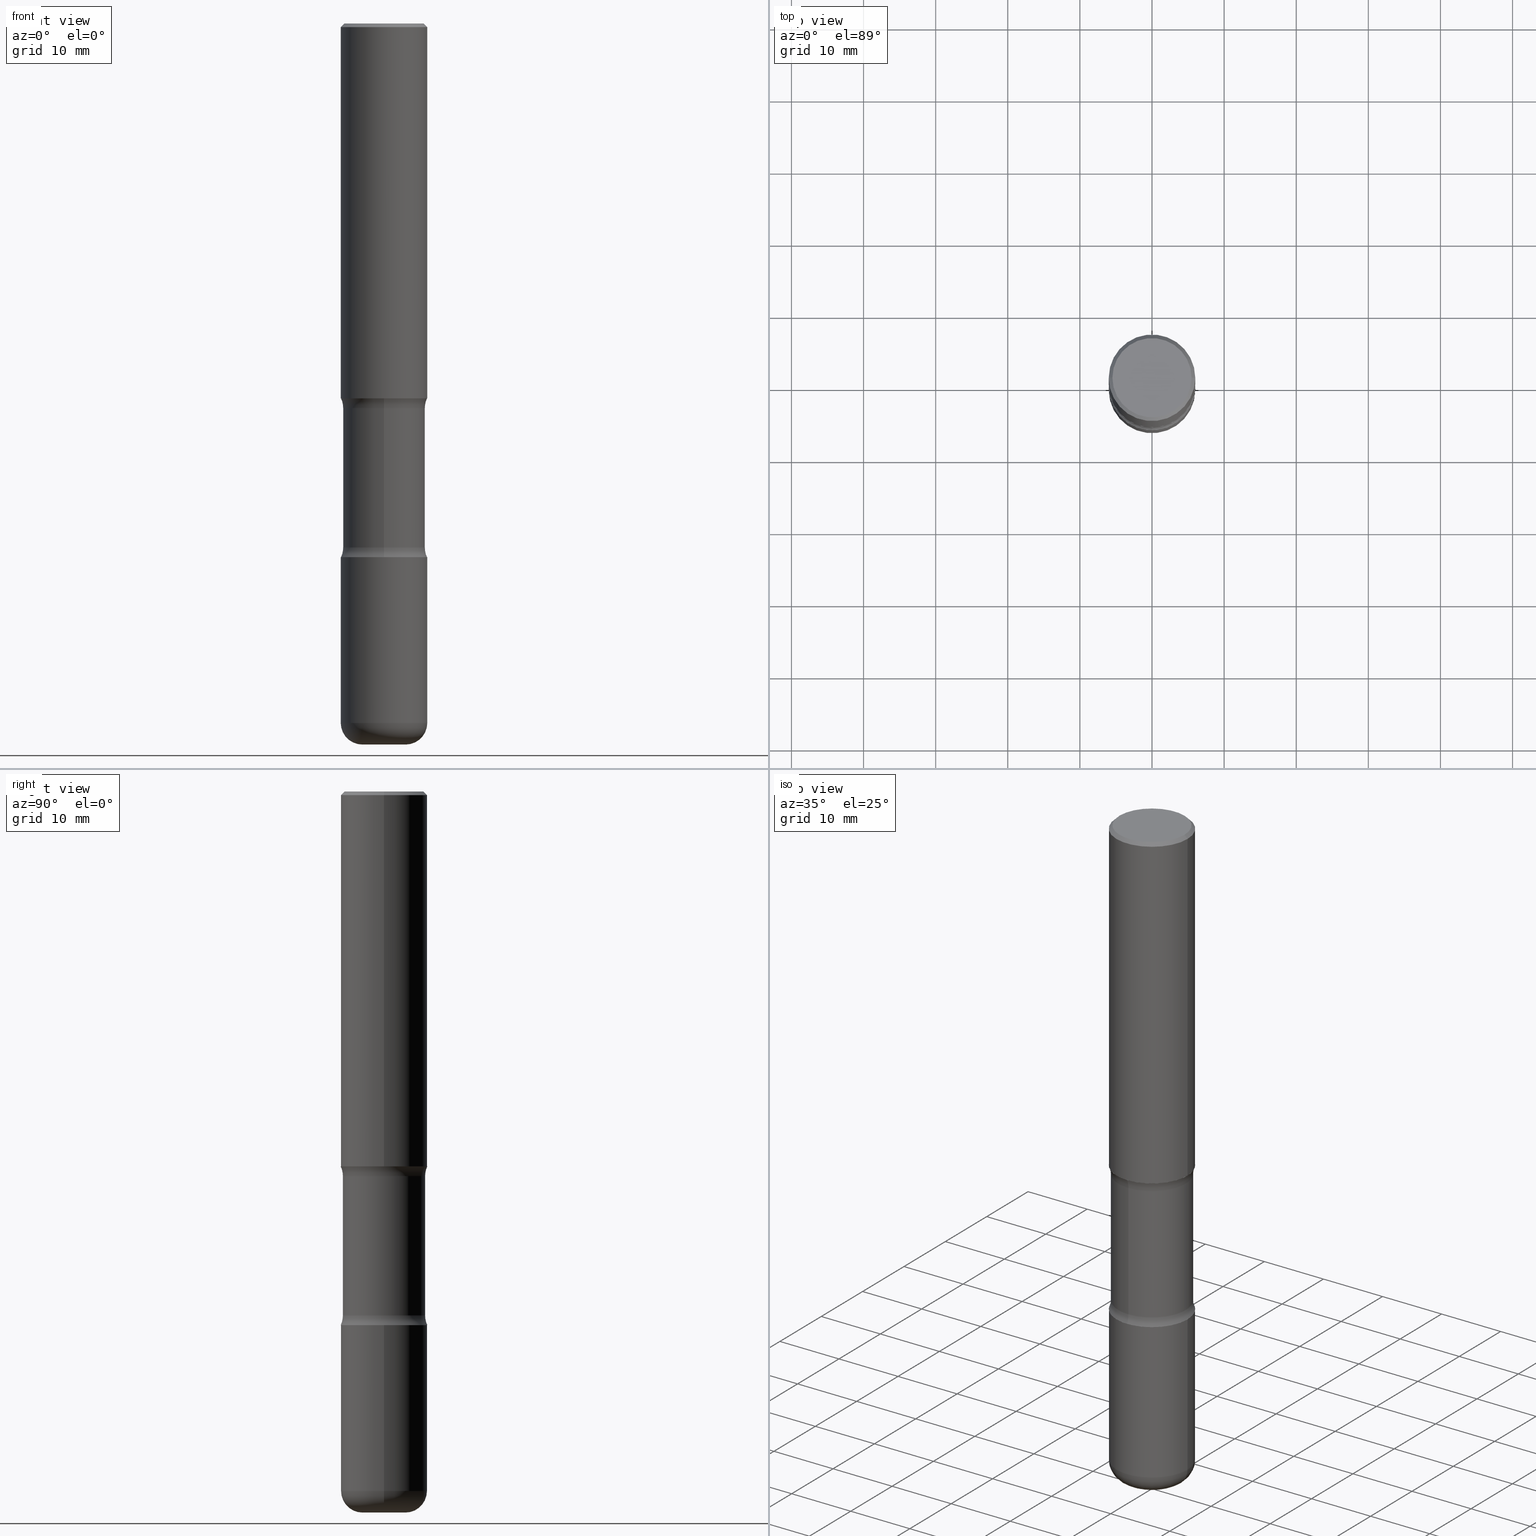
[diagram: canonical four-view strip — front | top / right | iso, engineering-drawing reading convention]
A machine part, canonical four-view strip (front | top / right | iso — engineering-drawing reading convention). The complete STEP part file that produces these views, byte-faithful:
ISO-10303-21;
HEADER;
FILE_DESCRIPTION (( 'STEP AP203' ),
    '1' );
FILE_NAME ('47712.STEP',
    '2024-03-02T07:41:34',
    ( '' ),
    ( '' ),
    'SwSTEP 2.0',
    'SolidWorks 2023',
    '' );
FILE_SCHEMA (( 'CONFIG_CONTROL_DESIGN' ));
ENDSEC;

DATA;
#1 = ADVANCED_FACE ( 'NONE', ( #97 ), #363, .T. ) ;
#2 = CIRCLE ( 'NONE', #140, 0.2161999999999998368 ) ;
#3 = AXIS2_PLACEMENT_3D ( 'NONE', #495, #107, #236 ) ;
#4 = ORIENTED_EDGE ( 'NONE', *, *, #439, .T. ) ;
#5 = LOCAL_TIME ( 2, 41, 34.00000000000000000, #168 ) ;
#6 = APPLICATION_CONTEXT ( 'configuration controlled 3d designs of mechanical parts and assemblies' ) ;
#7 = EDGE_LOOP ( 'NONE', ( #266, #401, #450, #311 ) ) ;
#8 = PERSON_AND_ORGANIZATION_ROLE ( 'creator' ) ;
#9 = EDGE_LOOP ( 'NONE', ( #138, #136, #232, #221 ) ) ;
#10 = ADVANCED_FACE ( 'NONE', ( #131 ), #387, .T. ) ;
#11 = DIRECTION ( 'NONE',  ( 1.000000000000000000, -6.982962677686269077E-15, 0.000000000000000000 ) ) ;
#12 = ORIENTED_EDGE ( 'NONE', *, *, #472, .F. ) ;
#13 = CIRCLE ( 'NONE', #544, 0.1181000000000002326 ) ;
#14 = CIRCLE ( 'NONE', #237, 0.1181000000000002326 ) ;
#15 = AXIS2_PLACEMENT_3D ( 'NONE', #325, #457, #234 ) ;
#16 = CARTESIAN_POINT ( 'NONE',  ( 6.990709676060807691E-29, -9.993088279580958225E-15, -2.860383398826405354 ) ) ;
#17 = FACE_OUTER_BOUND ( 'NONE', #541, .T. ) ;
#18 = EDGE_CURVE ( 'NONE', #63, #54, #206, .T. ) ;
#19 = PERSON_AND_ORGANIZATION_ROLE ( 'design_supplier' ) ;
#20 = DIRECTION ( 'NONE',  ( 7.105427357601001859E-15, 1.000000000000000000, -3.491481338843145583E-15 ) ) ;
#21 = ORIENTED_EDGE ( 'NONE', *, *, #491, .T. ) ;
#22 = DIRECTION ( 'NONE',  ( 2.525985086076564115E-29, -3.376177443336566513E-15, -1.000000000000000000 ) ) ;
#23 = DIRECTION ( 'NONE',  ( -2.445468806185136597E-29, 3.491481338843145583E-15, 1.000000000000000000 ) ) ;
#24 = ORIENTED_EDGE ( 'NONE', *, *, #153, .T. ) ;
#25 = CARTESIAN_POINT ( 'NONE',  ( 0.000000000000000000, 0.000000000000000000, 0.000000000000000000 ) ) ;
#26 = AXIS2_PLACEMENT_3D ( 'NONE', #233, #150, #459 ) ;
#27 = DIRECTION ( 'NONE',  ( 6.982962677686265922E-15, 1.000000000000000000, -3.652203200085913934E-15 ) ) ;
#28 = LINE ( 'NONE', #38, #393 ) ;
#29 = EDGE_CURVE ( 'NONE', #58, #524, #13, .T. ) ;
#30 = CC_DESIGN_PERSON_AND_ORGANIZATION_ASSIGNMENT ( #553, #41, ( #240 ) ) ;
#31 = VECTOR ( 'NONE', #220, 39.37007874015748143 ) ;
#32 = DIRECTION ( 'NONE',  ( -2.445468806185136597E-29, 3.491481338843145583E-15, 1.000000000000000000 ) ) ;
#33 = EDGE_CURVE ( 'NONE', #270, #210, #330, .T. ) ;
#34 = CIRCLE ( 'NONE', #148, 0.2361999999999998823 ) ;
#35 = CARTESIAN_POINT ( 'NONE',  ( -1.043851414335219820E-46, 1.490343170380447200E-32, 4.268512490100411279E-18 ) ) ;
#36 = LINE ( 'NONE', #154, #556 ) ;
#37 = EDGE_CURVE ( 'NONE', #45, #281, #348, .T. ) ;
#38 = CARTESIAN_POINT ( 'NONE',  ( -1.539495750699834052E-15, -0.2244000000000135608, -3.936999999999999389 ) ) ;
#39 = CARTESIAN_POINT ( 'NONE',  ( 9.627810689950880306E-29, -1.374596203102546026E-14, -3.936999999999998945 ) ) ;
#40 = CARTESIAN_POINT ( 'NONE',  ( 1.509716530915769534E-15, 0.2161999999999998368, -7.527240092128373149E-16 ) ) ;
#41 = PERSON_AND_ORGANIZATION_ROLE ( 'design_owner' ) ;
#42 = CIRCLE ( 'NONE', #431, 0.1249999999999999029 ) ;
#43 = APPROVAL_STATUS ( 'not_yet_approved' ) ;
#44 = DIRECTION ( 'NONE',  ( -2.438088387897960049E-29, 3.491481338843145188E-15, 1.000000000000000000 ) ) ;
#45 = VERTEX_POINT ( 'NONE', #478 ) ;
#46 = CIRCLE ( 'NONE', #172, 0.2362000000000002153 ) ;
#47 = DATE_AND_TIME ( #479, #467 ) ;
#48 = CC_DESIGN_APPROVAL ( #195, ( #539 ) ) ;
#49 = CARTESIAN_POINT ( 'NONE',  ( 9.710227154047748282E-29, -1.362793696358492956E-14, -3.937000000000000277 ) ) ;
#50 = ORIENTED_EDGE ( 'NONE', *, *, #73, .T. ) ;
#51 = ADVANCED_FACE ( 'NONE', ( #344 ), #90, .F. ) ;
#52 = CALENDAR_DATE ( 2024, 2, 3 ) ;
#53 = CARTESIAN_POINT ( 'NONE',  ( 9.339000823940415305E-29, -1.333361808490808613E-14, -3.818899999999998851 ) ) ;
#54 = VERTEX_POINT ( 'NONE', #249 ) ;
#55 = DIRECTION ( 'NONE',  ( -6.982962677686266711E-15, -1.000000000000000000, 0.000000000000000000 ) ) ;
#56 = ORIENTED_EDGE ( 'NONE', *, *, #203, .F. ) ;
#57 = CARTESIAN_POINT ( 'NONE',  ( 5.006363740022212241E-29, -7.147760596879688202E-15, -2.047200000000000131 ) ) ;
#58 = VERTEX_POINT ( 'NONE', #381 ) ;
#59 = CARTESIAN_POINT ( 'NONE',  ( 1.566976824872867821E-15, 0.2243999999999899686, -2.860383398826405799 ) ) ;
#60 = AXIS2_PLACEMENT_3D ( 'NONE', #402, #269, #368 ) ;
#61 = TOROIDAL_SURFACE ( 'NONE', #376, 0.3493999999999998218, 0.1249999999999999029 ) ;
#62 = DIRECTION ( 'NONE',  ( 2.525985086076564115E-29, -3.376177443336566513E-15, -1.000000000000000000 ) ) ;
#63 = VERTEX_POINT ( 'NONE', #367 ) ;
#64 = ADVANCED_FACE ( 'NONE', ( #142 ), #532, .F. ) ;
#65 = DIRECTION ( 'NONE',  ( 2.525985086076564115E-29, -3.376177443336566513E-15, -1.000000000000000000 ) ) ;
#66 = EDGE_LOOP ( 'NONE', ( #362, #400, #515, #448 ) ) ;
#67 = CARTESIAN_POINT ( 'NONE',  ( 9.710227154047748282E-29, -1.362793696358492956E-14, -3.937000000000000277 ) ) ;
#68 = DIRECTION ( 'NONE',  ( 6.982962677686265922E-15, 1.000000000000000000, -3.376177443336566513E-15 ) ) ;
#69 = AXIS2_PLACEMENT_3D ( 'NONE', #57, #483, #11 ) ;
#70 = CIRCLE ( 'NONE', #124, 0.2362000000000002153 ) ;
#71 = ADVANCED_FACE ( 'NONE', ( #318 ), #295, .T. ) ;
#72 = ORIENTED_EDGE ( 'NONE', *, *, #173, .T. ) ;
#73 = EDGE_CURVE ( 'NONE', #530, #537, #518, .T. ) ;
#74 = DIRECTION ( 'NONE',  ( 1.000000000000000000, -6.982962677686267499E-15, 0.000000000000000000 ) ) ;
#75 = AXIS2_PLACEMENT_3D ( 'NONE', #109, #106, #263 ) ;
#76 = LOCAL_TIME ( 2, 41, 34.00000000000000000, #91 ) ;
#77 = PLANE ( 'NONE',  #226 ) ;
#78 = CARTESIAN_POINT ( 'NONE',  ( 0.000000000000000000, 0.000000000000000000, 0.000000000000000000 ) ) ;
#79 = UNCERTAINTY_MEASURE_WITH_UNIT (LENGTH_MEASURE( 1.000000000000000082E-05 ), #170, 'distance_accuracy_value', 'NONE');
#80 = DIRECTION ( 'NONE',  ( 1.000000000000000000, -6.982962677686265922E-15, 4.876176775795935793E-29 ) ) ;
#81 = CARTESIAN_POINT ( 'NONE',  ( 9.339000823940415305E-29, -1.333361808490808613E-14, -3.818899999999998851 ) ) ;
#82 = DATE_AND_TIME ( #514, #5 ) ;
#83 = DIRECTION ( 'NONE',  ( -2.445468806185136597E-29, 3.491481338843145583E-15, 1.000000000000000000 ) ) ;
#84 = AXIS2_PLACEMENT_3D ( 'NONE', #301, #123, #440 ) ;
#85 = AXIS2_PLACEMENT_3D ( 'NONE', #189, #283, #501 ) ;
#86 = ORIENTED_EDGE ( 'NONE', *, *, #37, .F. ) ;
#87 = CARTESIAN_POINT ( 'NONE',  ( 4.890937612370289799E-31, -6.982962677686315028E-17, -0.02000000000000006981 ) ) ;
#88 = CC_DESIGN_PERSON_AND_ORGANIZATION_ASSIGNMENT ( #133, #103, ( #287 ) ) ;
#89 = DIRECTION ( 'NONE',  ( 1.000000000000000000, -6.982962677686269077E-15, 0.000000000000000000 ) ) ;
#90 = PLANE ( 'NONE',  #304 ) ;
#91 = COORDINATED_UNIVERSAL_TIME_OFFSET ( 5, 0, .BEHIND. ) ;
#92 = MANIFOLD_SOLID_BREP ( 'Body-Move/Copy2[1]', #99 ) ;
#93 = EDGE_CURVE ( 'NONE', #45, #497, #46, .T. ) ;
#94 = DATE_AND_TIME ( #360, #365 ) ;
#95 = EDGE_LOOP ( 'NONE', ( #110, #412, #369, #262 ) ) ;
#96 = EDGE_LOOP ( 'NONE', ( #177, #50, #24, #155 ) ) ;
#97 = FACE_OUTER_BOUND ( 'NONE', #274, .T. ) ;
#98 = EDGE_CURVE ( 'NONE', #386, #537, #275, .T. ) ;
#99 = CLOSED_SHELL ( 'NONE', ( #418, #333, #129, #1, #302, #64 ) ) ;
#100 = AXIS2_PLACEMENT_3D ( 'NONE', #513, #542, #549 ) ;
#101 = DIRECTION ( 'NONE',  ( 2.525985086076564115E-29, -3.376177443336566513E-15, -1.000000000000000000 ) ) ;
#102 = EDGE_LOOP ( 'NONE', ( #543, #327, #114, #225 ) ) ;
#103 = PERSON_AND_ORGANIZATION_ROLE ( 'classification_officer' ) ;
#104 = EDGE_LOOP ( 'NONE', ( #228, #409 ) ) ;
#105 = CARTESIAN_POINT ( 'NONE',  ( 1.566976824872894642E-15, 0.2243999999999863049, -3.937000000000000721 ) ) ;
#106 = DIRECTION ( 'NONE',  ( 2.525985086076564115E-29, -3.376177443336566513E-15, -1.000000000000000000 ) ) ;
#107 = DIRECTION ( 'NONE',  ( -2.445468806185136597E-29, 3.491481338843145583E-15, 1.000000000000000000 ) ) ;
#108 = CIRCLE ( 'NONE', #384, 0.2243999999999999606 ) ;
#109 = CARTESIAN_POINT ( 'NONE',  ( 6.990709676060807691E-29, -9.993088279580958225E-15, -2.860383398826405354 ) ) ;
#110 = ORIENTED_EDGE ( 'NONE', *, *, #472, .T. ) ;
#111 = ORIENTED_EDGE ( 'NONE', *, *, #289, .F. ) ;
#112 = ORIENTED_EDGE ( 'NONE', *, *, #554, .F. ) ;
#113 = EDGE_CURVE ( 'NONE', #278, #386, #399, .T. ) ;
#114 = ORIENTED_EDGE ( 'NONE', *, *, #98, .F. ) ;
#115 = AXIS2_PLACEMENT_3D ( 'NONE', #67, #430, #352 ) ;
#116 = AXIS2_PLACEMENT_3D ( 'NONE', #81, #32, #242 ) ;
#117 = ORIENTED_EDGE ( 'NONE', *, *, #29, .F. ) ;
#118 = DIRECTION ( 'NONE',  ( 2.525985086076564115E-29, -3.376177443336566513E-15, -1.000000000000000000 ) ) ;
#119 = DIRECTION ( 'NONE',  ( 2.525985086076564115E-29, -3.376177443336566513E-15, -1.000000000000000000 ) ) ;
#120 = CC_DESIGN_PERSON_AND_ORGANIZATION_ASSIGNMENT ( #407, #19, ( #539 ) ) ;
#121 = CARTESIAN_POINT ( 'NONE',  ( 4.890937612370289799E-31, -6.982962677686315028E-17, -0.02000000000000006981 ) ) ;
#122 = CIRCLE ( 'NONE', #256, 0.2362000000000001321 ) ;
#123 = DIRECTION ( 'NONE',  ( 2.525985086076564115E-29, -3.376177443336566513E-15, -1.000000000000000000 ) ) ;
#124 = AXIS2_PLACEMENT_3D ( 'NONE', #462, #547, #413 ) ;
#125 = DIRECTION ( 'NONE',  ( 2.445468806185136597E-29, -3.491481338843145583E-15, -1.000000000000000000 ) ) ;
#126 = CARTESIAN_POINT ( 'NONE',  ( 5.006363740022212241E-29, -7.147760596879688202E-15, -2.047200000000000131 ) ) ;
#127 = CALENDAR_DATE ( 2024, 2, 3 ) ;
#128 = ORIENTED_EDGE ( 'NONE', *, *, #421, .T. ) ;
#129 = ADVANCED_FACE ( 'NONE', ( #449 ), #408, .T. ) ;
#130 = CARTESIAN_POINT ( 'NONE',  ( -1.620449627073565067E-15, -0.2362000000000102629, -2.913399999999999768 ) ) ;
#131 = FACE_OUTER_BOUND ( 'NONE', #149, .T. ) ;
#132 = AXIS2_PLACEMENT_3D ( 'NONE', #87, #125, #164 ) ;
#133 = PERSON_AND_ORGANIZATION ( #359, #306 ) ;
#134 = CARTESIAN_POINT ( 'NONE',  ( 0.000000000000000000, 0.000000000000000000, 0.000000000000000000 ) ) ;
#135 = EDGE_CURVE ( 'NONE', #63, #314, #180, .T. ) ;
#136 = ORIENTED_EDGE ( 'NONE', *, *, #250, .F. ) ;
#137 = CARTESIAN_POINT ( 'NONE',  ( -1.620449627073587747E-15, -0.2362000000000074318, -2.047199999999999243 ) ) ;
#138 = ORIENTED_EDGE ( 'NONE', *, *, #531, .F. ) ;
#139 = CARTESIAN_POINT ( 'NONE',  ( 4.936620538380257512E-29, -7.247636831167487464E-15, -2.047200000000000131 ) ) ;
#140 = AXIS2_PLACEMENT_3D ( 'NONE', #35, #160, #204 ) ;
#141 = ORIENTED_EDGE ( 'NONE', *, *, #33, .F. ) ;
#142 = FACE_OUTER_BOUND ( 'NONE', #104, .T. ) ;
#143 = ORIENTED_EDGE ( 'NONE', *, *, #502, .F. ) ;
#144 = EDGE_LOOP ( 'NONE', ( #310, #445, #273, #179 ) ) ;
#145 = DIRECTION ( 'NONE',  ( 1.000000000000000000, -6.860497997771530774E-15, 4.842210945089756248E-29 ) ) ;
#146 = ORIENTED_EDGE ( 'NONE', *, *, #93, .T. ) ;
#147 = AXIS2_PLACEMENT_3D ( 'NONE', #470, #200, #379 ) ;
#148 = AXIS2_PLACEMENT_3D ( 'NONE', #121, #83, #74 ) ;
#149 = EDGE_LOOP ( 'NONE', ( #143, #128, #527, #218 ) ) ;
#150 = DIRECTION ( 'NONE',  ( 2.525985086076564115E-29, -3.376177443336566513E-15, -1.000000000000000000 ) ) ;
#151 = CARTESIAN_POINT ( 'NONE',  ( 0.2362000000000001598, -1.649375784469497314E-15, 1.151752954443000929E-29 ) ) ;
#152 = CARTESIAN_POINT ( 'NONE',  ( 7.124628819939777829E-29, -1.017208173258562247E-14, -2.913400000000000212 ) ) ;
#153 = EDGE_CURVE ( 'NONE', #537, #386, #370, .T. ) ;
#154 = CARTESIAN_POINT ( 'NONE',  ( -0.2361999999999998823, 1.579546157692632438E-15, -0.02000000000000006981 ) ) ;
#155 = ORIENTED_EDGE ( 'NONE', *, *, #458, .F. ) ;
#156 = TOROIDAL_SURFACE ( 'NONE', #476, 0.3493999999999998218, 0.1249999999999999029 ) ;
#157 = PRODUCT_DEFINITION_SHAPE ( 'NONE', 'NONE',  #432 ) ;
#158 = EDGE_CURVE ( 'NONE', #278, #316, #108, .T. ) ;
#159 = ORIENTED_EDGE ( 'NONE', *, *, #212, .T. ) ;
#160 = DIRECTION ( 'NONE',  ( -2.445468806185136597E-29, 3.491481338843145583E-15, 1.000000000000000000 ) ) ;
#161 = AXIS2_PLACEMENT_3D ( 'NONE', #254, #214, #427 ) ;
#162 = TOROIDAL_SURFACE ( 'NONE', #147, 0.3493999999999999884, 0.1250000000000000000 ) ;
#163 = CARTESIAN_POINT ( 'NONE',  ( -1.579972688886734072E-15, -0.2244000000000073713, -2.100216601173594544 ) ) ;
#164 = DIRECTION ( 'NONE',  ( -1.000000000000000000, 6.982962677686267499E-15, 0.000000000000000000 ) ) ;
#165 = DIRECTION ( 'NONE',  ( -2.445468806185136877E-29, 3.491481338843145188E-15, 1.000000000000000000 ) ) ;
#166 = EDGE_LOOP ( 'NONE', ( #358, #72, #12, #517 ) ) ;
#167 = ADVANCED_FACE ( 'NONE', ( #451 ), #443, .T. ) ;
#168 = COORDINATED_UNIVERSAL_TIME_OFFSET ( 5, 0, .BEHIND. ) ;
#169 = CARTESIAN_POINT ( 'NONE',  ( -0.2362000000000001321, -1.007454796688149554E-14, -2.913400000000000212 ) ) ;
#170 =( CONVERSION_BASED_UNIT ( 'INCH', #558 ) LENGTH_UNIT ( ) NAMED_UNIT ( #292 ) );
#171 = AXIS2_PLACEMENT_3D ( 'NONE', #16, #315, #176 ) ;
#172 = AXIS2_PLACEMENT_3D ( 'NONE', #53, #23, #455 ) ;
#173 = EDGE_CURVE ( 'NONE', #58, #45, #499, .T. ) ;
#174 = EDGE_LOOP ( 'NONE', ( #452, #345, #111, #112 ) ) ;
#175 = ORIENTED_EDGE ( 'NONE', *, *, #439, .F. ) ;
#176 = DIRECTION ( 'NONE',  ( 6.982962677686265922E-15, 1.000000000000000000, -2.434802133390609421E-15 ) ) ;
#177 = ORIENTED_EDGE ( 'NONE', *, *, #212, .F. ) ;
#178 = SECURITY_CLASSIFICATION_LEVEL ( 'unclassified' ) ;
#179 = ORIENTED_EDGE ( 'NONE', *, *, #550, .F. ) ;
#180 = CIRCLE ( 'NONE', #69, 0.2362000000000001321 ) ;
#181 = DIRECTION ( 'NONE',  ( 2.438088387897960049E-29, -3.491481338843145188E-15, -1.000000000000000000 ) ) ;
#182 = ORIENTED_EDGE ( 'NONE', *, *, #203, .T. ) ;
#183 = FACE_OUTER_BOUND ( 'NONE', #95, .T. ) ;
#184 = PRODUCT_RELATED_PRODUCT_CATEGORY ( 'detail', '', ( #240 ) ) ;
#185 = PLANE ( 'NONE',  #85 ) ;
#186 = CARTESIAN_POINT ( 'NONE',  ( 0.2361999999999998823, -1.690279253850498179E-15, -0.02000000000000006981 ) ) ;
#187 = VERTEX_POINT ( 'NONE', #186 ) ;
#188 = APPLICATION_CONTEXT ( 'configuration controlled 3d designs of mechanical parts and assemblies' ) ;
#189 = CARTESIAN_POINT ( 'NONE',  ( 5.006363740022212241E-29, -7.147760596879688202E-15, -2.047200000000000131 ) ) ;
#190 = VERTEX_POINT ( 'NONE', #217 ) ;
#191 = DIRECTION ( 'NONE',  ( -6.982962677686264344E-15, -1.000000000000000000, 0.000000000000000000 ) ) ;
#192 = CLOSED_SHELL ( 'NONE', ( #167, #259, #356, #405, #309, #463, #349, #10 ) ) ;
#193 = AXIS2_PLACEMENT_3D ( 'NONE', #224, #357, #355 ) ;
#194 = CC_DESIGN_APPROVAL ( #328, ( #432 ) ) ;
#195 = APPROVAL ( #307, 'UNSPECIFIED' ) ;
#196 = AXIS2_PLACEMENT_3D ( 'NONE', #510, #473, #294 ) ;
#197 =( LENGTH_UNIT ( ) NAMED_UNIT ( * ) SI_UNIT ( $, .METRE. ) );
#198 = CARTESIAN_POINT ( 'NONE',  ( 0.2362000000000001321, -8.797136381349186305E-15, -2.047200000000000131 ) ) ;
#199 = CARTESIAN_POINT ( 'NONE',  ( 0.000000000000000000, 0.000000000000000000, 0.000000000000000000 ) ) ;
#200 = DIRECTION ( 'NONE',  ( 2.525985086076564115E-29, -3.376177443336566513E-15, -1.000000000000000000 ) ) ;
#201 = DIRECTION ( 'NONE',  ( 2.438088387897960049E-29, -3.491481338843145188E-15, -1.000000000000000000 ) ) ;
#202 = MECHANICAL_CONTEXT ( 'NONE', #6, 'mechanical' ) ;
#203 = EDGE_CURVE ( 'NONE', #316, #210, #42, .T. ) ;
#204 = DIRECTION ( 'NONE',  ( 1.000000000000000000, -6.982962677686266711E-15, 4.876217060660159599E-29 ) ) ;
#205 = CIRCLE ( 'NONE', #545, 0.1249999999999999029 ) ;
#206 = LINE ( 'NONE', #557, #485 ) ;
#207 = ORIENTED_EDGE ( 'NONE', *, *, #321, .T. ) ;
#208 = APPROVAL_DATE_TIME ( #82, #328 ) ;
#209 = DIRECTION ( 'NONE',  ( -2.445468806185136597E-29, 3.491481338843145583E-15, 1.000000000000000000 ) ) ;
#210 = VERTEX_POINT ( 'NONE', #137 ) ;
#211 = DIRECTION ( 'NONE',  ( 1.000000000000000000, -6.982962677686266711E-15, 4.876176775795936353E-29 ) ) ;
#212 = EDGE_CURVE ( 'NONE', #530, #253, #122, .T. ) ;
#213 = AXIS2_PLACEMENT_3D ( 'NONE', #347, #468, #258 ) ;
#214 = DIRECTION ( 'NONE',  ( -2.445468806185136597E-29, 3.491481338843145583E-15, 1.000000000000000000 ) ) ;
#215 = APPROVAL_PERSON_ORGANIZATION ( #354, #195, #219 ) ;
#216 = DATE_AND_TIME ( #52, #76 ) ;
#217 = CARTESIAN_POINT ( 'NONE',  ( 0.2362000000000001321, -1.182145751705511899E-14, -2.913400000000000212 ) ) ;
#218 = ORIENTED_EDGE ( 'NONE', *, *, #153, .F. ) ;
#219 = APPROVAL_ROLE ( '' ) ;
#220 = DIRECTION ( 'NONE',  ( 2.525985086076564115E-29, -3.376177443336566513E-15, -1.000000000000000000 ) ) ;
#221 = ORIENTED_EDGE ( 'NONE', *, *, #550, .T. ) ;
#222 = FACE_OUTER_BOUND ( 'NONE', #471, .T. ) ;
#223 = ADVANCED_FACE ( 'NONE', ( #414 ), #372, .T. ) ;
#224 = CARTESIAN_POINT ( 'NONE',  ( -2.397058000421302516E-15, -0.3494000000000099249, -2.860383398826404022 ) ) ;
#225 = ORIENTED_EDGE ( 'NONE', *, *, #113, .F. ) ;
#226 = AXIS2_PLACEMENT_3D ( 'NONE', #40, #201, #424 ) ;
#227 = DIRECTION ( 'NONE',  ( 6.982962677686265922E-15, 1.000000000000000000, -2.434802133390609815E-15 ) ) ;
#228 = ORIENTED_EDGE ( 'NONE', *, *, #512, .T. ) ;
#229 = CARTESIAN_POINT ( 'NONE',  ( 2.439847159583651160E-15, 0.3493999999999899964, -2.860383398826406243 ) ) ;
#230 = EDGE_CURVE ( 'NONE', #281, #190, #498, .T. ) ;
#231 = CARTESIAN_POINT ( 'NONE',  ( 5.070539682259229331E-29, -7.426630284172150130E-15, -2.100216601173595432 ) ) ;
#232 = ORIENTED_EDGE ( 'NONE', *, *, #377, .T. ) ;
#233 = CARTESIAN_POINT ( 'NONE',  ( 7.124628819939777829E-29, -1.017208173258562247E-14, -2.913400000000000212 ) ) ;
#234 = DIRECTION ( 'NONE',  ( -6.982962677686265922E-15, -1.000000000000000000, 3.376177443336566513E-15 ) ) ;
#235 = DIRECTION ( 'NONE',  ( 6.982962677686265922E-15, 1.000000000000000000, -2.313165108945183485E-15 ) ) ;
#236 = DIRECTION ( 'NONE',  ( 1.000000000000000000, -6.982962677686266711E-15, 4.876176775795936353E-29 ) ) ;
#237 = AXIS2_PLACEMENT_3D ( 'NONE', #39, #209, #433 ) ;
#238 = DIRECTION ( 'NONE',  ( -2.445468806185136877E-29, 3.491481338843145188E-15, 1.000000000000000000 ) ) ;
#239 = ORIENTED_EDGE ( 'NONE', *, *, #33, .T. ) ;
#240 = PRODUCT ( '47712', '47712', '', ( #202 ) ) ;
#241 = APPROVAL ( #268, 'UNSPECIFIED' ) ;
#242 = DIRECTION ( 'NONE',  ( 1.000000000000000000, -6.982962677686266711E-15, 4.883557194083113462E-29 ) ) ;
#243 = CIRCLE ( 'NONE', #26, 0.2362000000000001321 ) ;
#244 = APPROVAL_PERSON_ORGANIZATION ( #521, #241, #526 ) ;
#245 = DIRECTION ( 'NONE',  ( 6.982962677686265922E-15, 1.000000000000000000, -3.376177443336566513E-15 ) ) ;
#246 = EDGE_CURVE ( 'NONE', #524, #58, #14, .T. ) ;
#247 = DIRECTION ( 'NONE',  ( 1.000000000000000000, 0.000000000000000000, 0.000000000000000000 ) ) ;
#248 = CARTESIAN_POINT ( 'NONE',  ( 0.2161999999999998368, -1.586759460484351002E-15, 4.268512490111238857E-18 ) ) ;
#249 = CARTESIAN_POINT ( 'NONE',  ( -0.2361999999999998823, 1.579546157692632438E-15, -0.02000000000000006981 ) ) ;
#250 = EDGE_CURVE ( 'NONE', #332, #308, #2, .T. ) ;
#251 = PERSON_AND_ORGANIZATION_ROLE ( 'creator' ) ;
#252 = DIRECTION ( 'NONE',  ( 1.000000000000000000, -6.982962677686266711E-15, 4.876176775795936353E-29 ) ) ;
#253 = VERTEX_POINT ( 'NONE', #519 ) ;
#254 = CARTESIAN_POINT ( 'NONE',  ( 9.339000823940415305E-29, -1.333361808490808613E-14, -3.818899999999998851 ) ) ;
#255 = DIRECTION ( 'NONE',  ( -2.445468806185136877E-29, 3.491481338843145188E-15, 1.000000000000000000 ) ) ;
#256 = AXIS2_PLACEMENT_3D ( 'NONE', #152, #548, #235 ) ;
#257 = CIRCLE ( 'NONE', #264, 0.2362000000000002431 ) ;
#258 = DIRECTION ( 'NONE',  ( 1.000000000000000000, -6.982962677686267499E-15, 0.000000000000000000 ) ) ;
#259 = ADVANCED_FACE ( 'NONE', ( #388 ), #162, .F. ) ;
#260 = DIRECTION ( 'NONE',  ( 1.000000000000000000, -6.982962677686275388E-15, 0.000000000000000000 ) ) ;
#261 = MANIFOLD_SOLID_BREP ( 'Body-Move/Copy2[4]', #192 ) ;
#262 = ORIENTED_EDGE ( 'NONE', *, *, #491, .F. ) ;
#263 = DIRECTION ( 'NONE',  ( 6.982962677686265922E-15, 1.000000000000000000, -2.434802133390609421E-15 ) ) ;
#264 = AXIS2_PLACEMENT_3D ( 'NONE', #139, #65, #488 ) ;
#265 = CARTESIAN_POINT ( 'NONE',  ( 4.890937612370289799E-31, -6.982962677686315028E-17, -0.02000000000000006981 ) ) ;
#266 = ORIENTED_EDGE ( 'NONE', *, *, #73, .F. ) ;
#267 = ADVANCED_FACE ( 'NONE', ( #380 ), #391, .T. ) ;
#268 = APPROVAL_STATUS ( 'not_yet_approved' ) ;
#269 = DIRECTION ( 'NONE',  ( 2.438088387897960049E-29, -3.491481338843145188E-15, -1.000000000000000000 ) ) ;
#270 = VERTEX_POINT ( 'NONE', #507 ) ;
#271 = EDGE_CURVE ( 'NONE', #308, #332, #392, .T. ) ;
#272 = DIRECTION ( 'NONE',  ( 6.982962677686265922E-15, 1.000000000000000000, -3.652203200085913934E-15 ) ) ;
#273 = ORIENTED_EDGE ( 'NONE', *, *, #554, .T. ) ;
#274 = EDGE_LOOP ( 'NONE', ( #322, #326, #207, #373 ) ) ;
#275 = CIRCLE ( 'NONE', #171, 0.2243999999999999606 ) ;
#276 = VECTOR ( 'NONE', #238, 39.37007874015748143 ) ;
#277 = DIRECTION ( 'NONE',  ( -1.000000000000000000, 6.982962677686267499E-15, 0.000000000000000000 ) ) ;
#278 = VERTEX_POINT ( 'NONE', #559 ) ;
#279 = EDGE_CURVE ( 'NONE', #314, #63, #364, .T. ) ;
#280 = PLANE ( 'NONE',  #15 ) ;
#281 = VERTEX_POINT ( 'NONE', #169 ) ;
#282 = CARTESIAN_POINT ( 'NONE',  ( 5.088323202950023588E-29, -7.401163270367792936E-15, -2.100216601173595432 ) ) ;
#283 = DIRECTION ( 'NONE',  ( 2.525985086076564115E-29, -3.376177443336566513E-15, -1.000000000000000000 ) ) ;
#284 = DIRECTION ( 'NONE',  ( -2.445468806185136597E-29, 3.491481338843145583E-15, 1.000000000000000000 ) ) ;
#285 = DESIGN_CONTEXT ( 'detailed design', #188, 'design' ) ;
#286 = DIRECTION ( 'NONE',  ( -1.000000000000000000, 6.982962677686265922E-15, -4.883557194083112340E-29 ) ) ;
#287 = SECURITY_CLASSIFICATION ( '', '', #178 ) ;
#288 = FACE_OUTER_BOUND ( 'NONE', #494, .T. ) ;
#289 = EDGE_CURVE ( 'NONE', #187, #54, #461, .T. ) ;
#290 = DIRECTION ( 'NONE',  ( 6.982962677686265922E-15, 1.000000000000000000, -3.376177443336566513E-15 ) ) ;
#291 = CARTESIAN_POINT ( 'NONE',  ( 0.1181000000000002326, -1.457064992326021168E-14, -3.936999999999998945 ) ) ;
#292 = DIMENSIONAL_EXPONENTS ( 1.000000000000000000, 0.000000000000000000, 0.000000000000000000, 0.000000000000000000, 0.000000000000000000, 0.000000000000000000, 0.000000000000000000 ) ;
#293 = CARTESIAN_POINT ( 'NONE',  ( 6.994978375559792251E-29, -9.986975258939122984E-15, -2.860383398826405354 ) ) ;
#294 = DIRECTION ( 'NONE',  ( 1.000000000000000000, -6.982962677686269077E-15, 0.000000000000000000 ) ) ;
#295 = CONICAL_SURFACE ( 'NONE', #422, 0.2361999999999998823, 0.7853981633974479459 ) ;
#296 = DIRECTION ( 'NONE',  ( 1.000000000000000000, -6.982962677686266711E-15, 4.876217060660159599E-29 ) ) ;
#297 = CIRCLE ( 'NONE', #196, 0.2362000000000001321 ) ;
#298 = FACE_OUTER_BOUND ( 'NONE', #9, .T. ) ;
#299 = DIRECTION ( 'NONE',  ( -2.445468806185136597E-29, 3.491481338843145583E-15, 1.000000000000000000 ) ) ;
#300 = DATE_TIME_ROLE ( 'creation_date' ) ;
#301 = CARTESIAN_POINT ( 'NONE',  ( 4.936620538380257512E-29, -7.247636831167487464E-15, -2.047200000000000131 ) ) ;
#302 = ADVANCED_FACE ( 'NONE', ( #437 ), #429, .T. ) ;
#303 = CARTESIAN_POINT ( 'NONE',  ( 0.2361999999999999933, -1.649375784469496131E-15, 1.151752954443000088E-29 ) ) ;
#304 = AXIS2_PLACEMENT_3D ( 'NONE', #508, #44, #80 ) ;
#305 = AXIS2_PLACEMENT_3D ( 'NONE', #126, #511, #89 ) ;
#306 = ORGANIZATION ( 'UNSPECIFIED', 'UNSPECIFIED', '' ) ;
#307 = APPROVAL_STATUS ( 'not_yet_approved' ) ;
#308 = VERTEX_POINT ( 'NONE', #248 ) ;
#309 = ADVANCED_FACE ( 'NONE', ( #426 ), #185, .F. ) ;
#310 = ORIENTED_EDGE ( 'NONE', *, *, #18, .F. ) ;
#311 = ORIENTED_EDGE ( 'NONE', *, *, #98, .T. ) ;
#312 = EDGE_CURVE ( 'NONE', #253, #530, #243, .T. ) ;
#313 = AXIS2_PLACEMENT_3D ( 'NONE', #454, #415, #27 ) ;
#314 = VERTEX_POINT ( 'NONE', #198 ) ;
#315 = DIRECTION ( 'NONE',  ( 2.525985086076564115E-29, -3.376177443336566513E-15, -1.000000000000000000 ) ) ;
#316 = VERTEX_POINT ( 'NONE', #163 ) ;
#317 = ORIENTED_EDGE ( 'NONE', *, *, #246, .F. ) ;
#318 = FACE_OUTER_BOUND ( 'NONE', #66, .T. ) ;
#319 = ORIENTED_EDGE ( 'NONE', *, *, #312, .T. ) ;
#320 = CYLINDRICAL_SURFACE ( 'NONE', #3, 0.2362000000000001598 ) ;
#321 = EDGE_CURVE ( 'NONE', #524, #497, #339, .T. ) ;
#322 = ORIENTED_EDGE ( 'NONE', *, *, #173, .F. ) ;
#323 = AXIS2_PLACEMENT_3D ( 'NONE', #496, #20, #525 ) ;
#324 = AXIS2_PLACEMENT_3D ( 'NONE', #229, #447, #55 ) ;
#325 = CARTESIAN_POINT ( 'NONE',  ( 7.124628819939777829E-29, -1.017208173258562247E-14, -2.913400000000000212 ) ) ;
#326 = ORIENTED_EDGE ( 'NONE', *, *, #29, .T. ) ;
#327 = ORIENTED_EDGE ( 'NONE', *, *, #502, .T. ) ;
#328 = APPROVAL ( #43, 'UNSPECIFIED' ) ;
#329 = FACE_OUTER_BOUND ( 'NONE', #166, .T. ) ;
#330 = CIRCLE ( 'NONE', #84, 0.2362000000000002431 ) ;
#331 = APPROVAL_PERSON_ORGANIZATION ( #338, #328, #343 ) ;
#332 = VERTEX_POINT ( 'NONE', #552 ) ;
#333 = ADVANCED_FACE ( 'NONE', ( #329 ), #416, .T. ) ;
#334 = ADVANCED_BREP_SHAPE_REPRESENTATION ( '47712', ( #92, #460, #261, #423 ), #529 ) ;
#335 = CC_DESIGN_DATE_AND_TIME_ASSIGNMENT ( #94, #444, ( #287 ) ) ;
#336 = DIRECTION ( 'NONE',  ( -0.7071067811865472397, 2.468850131082253905E-15, -0.7071067811865477948 ) ) ;
#337 = CLOSED_SHELL ( 'NONE', ( #223, #71, #534, #374, #51, #267 ) ) ;
#338 = PERSON_AND_ORGANIZATION ( #359, #306 ) ;
#339 = CIRCLE ( 'NONE', #100, 0.1180999999999999828 ) ;
#340 = DIRECTION ( 'NONE',  ( -2.445468806185136597E-29, 3.491481338843145583E-15, 1.000000000000000000 ) ) ;
#341 = LOCAL_TIME ( 2, 41, 34.00000000000000000, #428 ) ;
#342 = DIRECTION ( 'NONE',  ( 2.525985086076564115E-29, -3.376177443336566513E-15, -1.000000000000000000 ) ) ;
#343 = APPROVAL_ROLE ( '' ) ;
#344 = FACE_OUTER_BOUND ( 'NONE', #484, .T. ) ;
#345 = ORIENTED_EDGE ( 'NONE', *, *, #18, .T. ) ;
#346 = DATE_AND_TIME ( #127, #341 ) ;
#347 = CARTESIAN_POINT ( 'NONE',  ( 4.890937612370289799E-31, -6.982962677686315028E-17, -0.02000000000000006981 ) ) ;
#348 = LINE ( 'NONE', #438, #404 ) ;
#349 = ADVANCED_FACE ( 'NONE', ( #375 ), #406, .F. ) ;
#350 = PERSON_AND_ORGANIZATION ( #359, #306 ) ;
#351 = AXIS2_PLACEMENT_3D ( 'NONE', #522, #181, #493 ) ;
#352 = DIRECTION ( 'NONE',  ( 6.982962677686265922E-15, 1.000000000000000000, -2.434802133390609815E-15 ) ) ;
#353 = CONICAL_SURFACE ( 'NONE', #132, 0.2361999999999998823, 0.7853981633974479459 ) ;
#354 = PERSON_AND_ORGANIZATION ( #359, #306 ) ;
#355 = DIRECTION ( 'NONE',  ( 6.860497997771529985E-15, 1.000000000000000000, 0.000000000000000000 ) ) ;
#356 = ADVANCED_FACE ( 'NONE', ( #465 ), #156, .F. ) ;
#357 = DIRECTION ( 'NONE',  ( 1.000000000000000000, -6.860497997771530774E-15, 4.842210945089756248E-29 ) ) ;
#358 = ORIENTED_EDGE ( 'NONE', *, *, #246, .T. ) ;
#359 = PERSON ( 'UNSPECIFIED', 'UNSPECIFIED', 'UNSPECIFIED', ('UNSPECIFIED'), ('UNSPECIFIED'), ('UNSPECIFIED') ) ;
#360 = CALENDAR_DATE ( 2024, 2, 3 ) ;
#361 = ORIENTED_EDGE ( 'NONE', *, *, #279, .F. ) ;
#362 = ORIENTED_EDGE ( 'NONE', *, *, #271, .F. ) ;
#363 = TOROIDAL_SURFACE ( 'NONE', #161, 0.1181000000000002187, 0.1180999999999999966 ) ;
#364 = CIRCLE ( 'NONE', #305, 0.2362000000000001321 ) ;
#365 = LOCAL_TIME ( 2, 41, 34.00000000000000000, #492 ) ;
#366 = APPROVAL_DATE_TIME ( #216, #241 ) ;
#367 = CARTESIAN_POINT ( 'NONE',  ( -0.2362000000000001598, -1.930493169962915017E-15, -2.047200000000000131 ) ) ;
#368 = DIRECTION ( 'NONE',  ( -1.000000000000000000, 6.982962677686265922E-15, -4.876176775795935793E-29 ) ) ;
#369 = ORIENTED_EDGE ( 'NONE', *, *, #512, .F. ) ;
#370 = CIRCLE ( 'NONE', #75, 0.2243999999999999606 ) ;
#371 = CC_DESIGN_SECURITY_CLASSIFICATION ( #287, ( #539 ) ) ;
#372 = CYLINDRICAL_SURFACE ( 'NONE', #528, 0.2361999999999999933 ) ;
#373 = ORIENTED_EDGE ( 'NONE', *, *, #93, .F. ) ;
#374 = ADVANCED_FACE ( 'NONE', ( #288 ), #77, .F. ) ;
#375 = FACE_OUTER_BOUND ( 'NONE', #7, .T. ) ;
#376 = AXIS2_PLACEMENT_3D ( 'NONE', #282, #22, #68 ) ;
#377 = EDGE_CURVE ( 'NONE', #332, #54, #36, .T. ) ;
#378 = LINE ( 'NONE', #303, #500 ) ;
#379 = DIRECTION ( 'NONE',  ( 6.982962677686265922E-15, 1.000000000000000000, -3.376177443336566513E-15 ) ) ;
#380 = FACE_OUTER_BOUND ( 'NONE', #144, .T. ) ;
#381 = CARTESIAN_POINT ( 'NONE',  ( -0.1181000000000002326, -1.228106360156775550E-14, -3.936999999999998945 ) ) ;
#382 = CARTESIAN_POINT ( 'NONE',  ( 2.439847159583631044E-15, 0.3493999999999924388, -2.100216601173596320 ) ) ;
#383 = APPLICATION_PROTOCOL_DEFINITION ( 'international standard', 'config_control_design', 1994, #188 ) ;
#384 = AXIS2_PLACEMENT_3D ( 'NONE', #231, #101, #272 ) ;
#385 = EDGE_CURVE ( 'NONE', #278, #270, #205, .T. ) ;
#386 = VERTEX_POINT ( 'NONE', #59 ) ;
#387 = CYLINDRICAL_SURFACE ( 'NONE', #115, 0.2243999999999999329 ) ;
#388 = FACE_OUTER_BOUND ( 'NONE', #96, .T. ) ;
#389 = DIRECTION ( 'NONE',  ( -2.445468806185136877E-29, 3.491481338843145188E-15, 1.000000000000000000 ) ) ;
#390 = CC_DESIGN_PERSON_AND_ORGANIZATION_ASSIGNMENT ( #350, #8, ( #539 ) ) ;
#391 = CYLINDRICAL_SURFACE ( 'NONE', #466, 0.2361999999999999933 ) ;
#392 = CIRCLE ( 'NONE', #509, 0.2161999999999998368 ) ;
#393 = VECTOR ( 'NONE', #119, 39.37007874015748143 ) ;
#394 = CC_DESIGN_DATE_AND_TIME_ASSIGNMENT ( #346, #300, ( #432 ) ) ;
#395 = DIRECTION ( 'NONE',  ( 6.860497997771531562E-15, 1.000000000000000000, 0.000000000000000000 ) ) ;
#396 = ORIENTED_EDGE ( 'NONE', *, *, #385, .F. ) ;
#397 = APPROVAL_DATE_TIME ( #47, #195 ) ;
#398 = ORIENTED_EDGE ( 'NONE', *, *, #230, .F. ) ;
#399 = LINE ( 'NONE', #105, #31 ) ;
#400 = ORIENTED_EDGE ( 'NONE', *, *, #531, .T. ) ;
#401 = ORIENTED_EDGE ( 'NONE', *, *, #312, .F. ) ;
#402 = CARTESIAN_POINT ( 'NONE',  ( 7.124628819939777829E-29, -1.017208173258562247E-14, -2.913400000000000212 ) ) ;
#403 = ORIENTED_EDGE ( 'NONE', *, *, #271, .T. ) ;
#404 = VECTOR ( 'NONE', #165, 39.37007874015748143 ) ;
#405 = ADVANCED_FACE ( 'NONE', ( #17 ), #61, .F. ) ;
#406 = TOROIDAL_SURFACE ( 'NONE', #486, 0.3493999999999999884, 0.1250000000000000000 ) ;
#407 = PERSON_AND_ORGANIZATION ( #359, #306 ) ;
#408 = PLANE ( 'NONE',  #351 ) ;
#409 = ORIENTED_EDGE ( 'NONE', *, *, #230, .T. ) ;
#410 = LINE ( 'NONE', #151, #276 ) ;
#411 = DIRECTION ( 'NONE',  ( 2.445468806185136597E-29, -3.491481338843145583E-15, -1.000000000000000000 ) ) ;
#412 = ORIENTED_EDGE ( 'NONE', *, *, #37, .T. ) ;
#413 = DIRECTION ( 'NONE',  ( 1.000000000000000000, -6.982962677686266711E-15, 0.000000000000000000 ) ) ;
#414 = FACE_OUTER_BOUND ( 'NONE', #174, .T. ) ;
#415 = DIRECTION ( 'NONE',  ( 2.525985086076564115E-29, -3.376177443336566513E-15, -1.000000000000000000 ) ) ;
#416 = TOROIDAL_SURFACE ( 'NONE', #116, 0.1181000000000002187, 0.1180999999999999966 ) ;
#417 = VECTOR ( 'NONE', #516, 39.37007874015748143 ) ;
#418 = ADVANCED_FACE ( 'NONE', ( #183 ), #320, .T. ) ;
#419 = CARTESIAN_POINT ( 'NONE',  ( 0.2362000000000002153, -1.498299386937758423E-14, -3.818899999999998851 ) ) ;
#420 = DIRECTION ( 'NONE',  ( -2.445468806185136597E-29, 3.491481338843145583E-15, 1.000000000000000000 ) ) ;
#421 = EDGE_CURVE ( 'NONE', #316, #278, #453, .T. ) ;
#422 = AXIS2_PLACEMENT_3D ( 'NONE', #265, #411, #277 ) ;
#423 = AXIS2_PLACEMENT_3D ( 'NONE', #199, #505, #247 ) ;
#424 = DIRECTION ( 'NONE',  ( -1.000000000000000000, 6.982962677686265922E-15, -4.876176775795935793E-29 ) ) ;
#425 =( NAMED_UNIT ( * ) SI_UNIT ( $, .STERADIAN. ) SOLID_ANGLE_UNIT ( ) );
#426 = FACE_OUTER_BOUND ( 'NONE', #536, .T. ) ;
#427 = DIRECTION ( 'NONE',  ( 1.000000000000000000, -6.982962677686266711E-15, 4.883557194083113462E-29 ) ) ;
#428 = COORDINATED_UNIVERSAL_TIME_OFFSET ( 5, 0, .BEHIND. ) ;
#429 = CYLINDRICAL_SURFACE ( 'NONE', #538, 0.2362000000000001598 ) ;
#430 = DIRECTION ( 'NONE',  ( 2.525985086076564115E-29, -3.376177443336566513E-15, -1.000000000000000000 ) ) ;
#431 = AXIS2_PLACEMENT_3D ( 'NONE', #535, #145, #395 ) ;
#432 = PRODUCT_DEFINITION ( 'UNKNOWN', '', #539, #285 ) ;
#433 = DIRECTION ( 'NONE',  ( 1.000000000000000000, -6.982962677686275388E-15, 0.000000000000000000 ) ) ;
#434 = CARTESIAN_POINT ( 'NONE',  ( 9.627810689950880306E-29, -1.374596203102546026E-14, -3.936999999999998945 ) ) ;
#435 = ORIENTED_EDGE ( 'NONE', *, *, #385, .T. ) ;
#436 =( NAMED_UNIT ( * ) PLANE_ANGLE_UNIT ( ) SI_UNIT ( $, .RADIAN. ) );
#437 = FACE_OUTER_BOUND ( 'NONE', #533, .T. ) ;
#438 = CARTESIAN_POINT ( 'NONE',  ( -0.2362000000000001598, 1.678301941865357775E-15, -1.161852468318209598E-29 ) ) ;
#439 = EDGE_CURVE ( 'NONE', #210, #270, #257, .T. ) ;
#440 = DIRECTION ( 'NONE',  ( 6.982962677686265922E-15, 1.000000000000000000, -3.469747663417773452E-15 ) ) ;
#441 = COORDINATED_UNIVERSAL_TIME_OFFSET ( 5, 0, .BEHIND. ) ;
#442 = AXIS2_PLACEMENT_3D ( 'NONE', #503, #284, #474 ) ;
#443 = CYLINDRICAL_SURFACE ( 'NONE', #504, 0.2243999999999999329 ) ;
#444 = DATE_TIME_ROLE ( 'classification_date' ) ;
#445 = ORIENTED_EDGE ( 'NONE', *, *, #135, .T. ) ;
#446 = ORIENTED_EDGE ( 'NONE', *, *, #135, .F. ) ;
#447 = DIRECTION ( 'NONE',  ( -1.000000000000000000, 6.982962677686265922E-15, -4.883557194083112340E-29 ) ) ;
#448 = ORIENTED_EDGE ( 'NONE', *, *, #377, .F. ) ;
#449 = FACE_OUTER_BOUND ( 'NONE', #489, .T. ) ;
#450 = ORIENTED_EDGE ( 'NONE', *, *, #458, .T. ) ;
#451 = FACE_OUTER_BOUND ( 'NONE', #102, .T. ) ;
#452 = ORIENTED_EDGE ( 'NONE', *, *, #279, .T. ) ;
#453 = CIRCLE ( 'NONE', #313, 0.2243999999999999606 ) ;
#454 = CARTESIAN_POINT ( 'NONE',  ( 5.070539682259229331E-29, -7.426630284172150130E-15, -2.100216601173595432 ) ) ;
#455 = DIRECTION ( 'NONE',  ( 1.000000000000000000, -6.982962677686266711E-15, 0.000000000000000000 ) ) ;
#456 = EDGE_LOOP ( 'NONE', ( #482, #182, #4, #396 ) ) ;
#457 = DIRECTION ( 'NONE',  ( -2.525985086076564115E-29, 3.376177443336566513E-15, 1.000000000000000000 ) ) ;
#458 = EDGE_CURVE ( 'NONE', #253, #386, #520, .T. ) ;
#459 = DIRECTION ( 'NONE',  ( 6.982962677686265922E-15, 1.000000000000000000, -2.313165108945183485E-15 ) ) ;
#460 = MANIFOLD_SOLID_BREP ( 'Body-Move/Copy2[2]', #337 ) ;
#461 = CIRCLE ( 'NONE', #213, 0.2361999999999998823 ) ;
#462 = CARTESIAN_POINT ( 'NONE',  ( 9.339000823940415305E-29, -1.333361808490808613E-14, -3.818899999999998851 ) ) ;
#463 = ADVANCED_FACE ( 'NONE', ( #222 ), #280, .F. ) ;
#464 = LINE ( 'NONE', #475, #417 ) ;
#465 = FACE_OUTER_BOUND ( 'NONE', #456, .T. ) ;
#466 = AXIS2_PLACEMENT_3D ( 'NONE', #134, #340, #252 ) ;
#467 = LOCAL_TIME ( 2, 41, 34.00000000000000000, #441 ) ;
#468 = DIRECTION ( 'NONE',  ( -2.445468806185136597E-29, 3.491481338843145583E-15, 1.000000000000000000 ) ) ;
#469 = PERSON_AND_ORGANIZATION ( #359, #306 ) ;
#470 = CARTESIAN_POINT ( 'NONE',  ( 6.994978375559792251E-29, -9.986975258939122984E-15, -2.860383398826405354 ) ) ;
#471 = EDGE_LOOP ( 'NONE', ( #319, #159 ) ) ;
#472 = EDGE_CURVE ( 'NONE', #497, #45, #70, .T. ) ;
#473 = DIRECTION ( 'NONE',  ( -2.445468806185136597E-29, 3.491481338843145583E-15, 1.000000000000000000 ) ) ;
#474 = DIRECTION ( 'NONE',  ( 1.000000000000000000, -6.982962677686269077E-15, 0.000000000000000000 ) ) ;
#475 = CARTESIAN_POINT ( 'NONE',  ( 0.2361999999999998823, -1.690279253850498179E-15, -0.02000000000000006981 ) ) ;
#476 = AXIS2_PLACEMENT_3D ( 'NONE', #555, #342, #245 ) ;
#477 = DIRECTION ( 'NONE',  ( -2.445468806185136597E-29, 3.491481338843145583E-15, 1.000000000000000000 ) ) ;
#478 = CARTESIAN_POINT ( 'NONE',  ( -0.2362000000000002153, -1.165531614304272658E-14, -3.818899999999998851 ) ) ;
#479 = CALENDAR_DATE ( 2024, 2, 3 ) ;
#480 = CARTESIAN_POINT ( 'NONE',  ( -1.043851414335219820E-46, 1.490343170380447200E-32, 4.268512490100411279E-18 ) ) ;
#481 = CC_DESIGN_PERSON_AND_ORGANIZATION_ASSIGNMENT ( #469, #251, ( #432 ) ) ;
#482 = ORIENTED_EDGE ( 'NONE', *, *, #421, .F. ) ;
#483 = DIRECTION ( 'NONE',  ( -2.445468806185136597E-29, 3.491481338843145583E-15, 1.000000000000000000 ) ) ;
#484 = EDGE_LOOP ( 'NONE', ( #361, #446 ) ) ;
#485 = VECTOR ( 'NONE', #389, 39.37007874015748143 ) ;
#486 = AXIS2_PLACEMENT_3D ( 'NONE', #293, #118, #290 ) ;
#487 = ORIENTED_EDGE ( 'NONE', *, *, #158, .F. ) ;
#488 = DIRECTION ( 'NONE',  ( 6.982962677686265922E-15, 1.000000000000000000, -3.469747663417773452E-15 ) ) ;
#489 = EDGE_LOOP ( 'NONE', ( #317, #117 ) ) ;
#490 = ORIENTED_EDGE ( 'NONE', *, *, #250, .T. ) ;
#491 = EDGE_CURVE ( 'NONE', #497, #190, #410, .T. ) ;
#492 = COORDINATED_UNIVERSAL_TIME_OFFSET ( 5, 0, .BEHIND. ) ;
#493 = DIRECTION ( 'NONE',  ( -1.000000000000000000, 6.982962677686265922E-15, -4.876176775795935793E-29 ) ) ;
#494 = EDGE_LOOP ( 'NONE', ( #490, #403 ) ) ;
#495 = CARTESIAN_POINT ( 'NONE',  ( 0.000000000000000000, 0.000000000000000000, 0.000000000000000000 ) ) ;
#496 = CARTESIAN_POINT ( 'NONE',  ( -0.1181000000000002187, -1.249446711397540556E-14, -3.818899999999998851 ) ) ;
#497 = VERTEX_POINT ( 'NONE', #419 ) ;
#498 = CIRCLE ( 'NONE', #442, 0.2362000000000001321 ) ;
#499 = CIRCLE ( 'NONE', #323, 0.1180999999999999828 ) ;
#500 = VECTOR ( 'NONE', #255, 39.37007874015748143 ) ;
#501 = DIRECTION ( 'NONE',  ( 6.982962677686265922E-15, 1.000000000000000000, -3.376177443336566513E-15 ) ) ;
#502 = EDGE_CURVE ( 'NONE', #316, #537, #28, .T. ) ;
#503 = CARTESIAN_POINT ( 'NONE',  ( 7.124628819939777829E-29, -1.017208173258562247E-14, -2.913400000000000212 ) ) ;
#504 = AXIS2_PLACEMENT_3D ( 'NONE', #49, #62, #227 ) ;
#505 = DIRECTION ( 'NONE',  ( 0.000000000000000000, 0.000000000000000000, 1.000000000000000000 ) ) ;
#506 = CARTESIAN_POINT ( 'NONE',  ( -1.579972688886713168E-15, -0.2244000000000099804, -2.860383398826404466 ) ) ;
#507 = CARTESIAN_POINT ( 'NONE',  ( 1.649375784469546815E-15, 0.2361999999999930266, -2.047200000000001019 ) ) ;
#508 = CARTESIAN_POINT ( 'NONE',  ( 5.006363740022212241E-29, -7.147760596879688202E-15, -2.047200000000000131 ) ) ;
#509 = AXIS2_PLACEMENT_3D ( 'NONE', #480, #477, #296 ) ;
#510 = CARTESIAN_POINT ( 'NONE',  ( 7.124628819939777829E-29, -1.017208173258562247E-14, -2.913400000000000212 ) ) ;
#511 = DIRECTION ( 'NONE',  ( -2.445468806185136597E-29, 3.491481338843145583E-15, 1.000000000000000000 ) ) ;
#512 = EDGE_CURVE ( 'NONE', #190, #281, #297, .T. ) ;
#513 = CARTESIAN_POINT ( 'NONE',  ( 0.1181000000000002187, -1.415830597714283439E-14, -3.818899999999998851 ) ) ;
#514 = CALENDAR_DATE ( 2024, 2, 3 ) ;
#515 = ORIENTED_EDGE ( 'NONE', *, *, #289, .T. ) ;
#516 = DIRECTION ( 'NONE',  ( 0.7071067811865472397, -7.319954787623254468E-15, -0.7071067811865477948 ) ) ;
#517 = ORIENTED_EDGE ( 'NONE', *, *, #321, .F. ) ;
#518 = CIRCLE ( 'NONE', #193, 0.1250000000000000000 ) ;
#519 = CARTESIAN_POINT ( 'NONE',  ( 1.649375784469567917E-15, 0.2361999999999899458, -2.913400000000000656 ) ) ;
#520 = CIRCLE ( 'NONE', #324, 0.1250000000000000000 ) ;
#521 = PERSON_AND_ORGANIZATION ( #359, #306 ) ;
#522 = CARTESIAN_POINT ( 'NONE',  ( 3.506515449719347614E-28, 2.268176210464327237E-14, -3.936999999999999389 ) ) ;
#523 = SHAPE_DEFINITION_REPRESENTATION ( #157, #334 ) ;
#524 = VERTEX_POINT ( 'NONE', #291 ) ;
#525 = DIRECTION ( 'NONE',  ( -1.000000000000000000, 7.105427357601005014E-15, 0.000000000000000000 ) ) ;
#526 = APPROVAL_ROLE ( '' ) ;
#527 = ORIENTED_EDGE ( 'NONE', *, *, #113, .T. ) ;
#528 = AXIS2_PLACEMENT_3D ( 'NONE', #25, #420, #540 ) ;
#529 =( GEOMETRIC_REPRESENTATION_CONTEXT ( 3 ) GLOBAL_UNCERTAINTY_ASSIGNED_CONTEXT ( ( #79 ) ) GLOBAL_UNIT_ASSIGNED_CONTEXT ( ( #170, #436, #425 ) ) REPRESENTATION_CONTEXT ( 'NONE', 'WORKASPACE' ) );
#530 = VERTEX_POINT ( 'NONE', #130 ) ;
#531 = EDGE_CURVE ( 'NONE', #308, #187, #464, .T. ) ;
#532 = PLANE ( 'NONE',  #60 ) ;
#533 = EDGE_LOOP ( 'NONE', ( #86, #146, #21, #398 ) ) ;
#534 = ADVANCED_FACE ( 'NONE', ( #298 ), #353, .T. ) ;
#535 = CARTESIAN_POINT ( 'NONE',  ( -2.397058000421320660E-15, -0.3494000000000072048, -2.100216601173594544 ) ) ;
#536 = EDGE_LOOP ( 'NONE', ( #141, #175 ) ) ;
#537 = VERTEX_POINT ( 'NONE', #506 ) ;
#538 = AXIS2_PLACEMENT_3D ( 'NONE', #78, #299, #211 ) ;
#539 = PRODUCT_DEFINITION_FORMATION_WITH_SPECIFIED_SOURCE ( 'ANY', '', #240, .NOT_KNOWN. ) ;
#540 = DIRECTION ( 'NONE',  ( 1.000000000000000000, -6.982962677686266711E-15, 4.876176775795936353E-29 ) ) ;
#541 = EDGE_LOOP ( 'NONE', ( #56, #487, #435, #239 ) ) ;
#542 = DIRECTION ( 'NONE',  ( -6.982962677686266711E-15, -1.000000000000000000, 3.491481338843145583E-15 ) ) ;
#543 = ORIENTED_EDGE ( 'NONE', *, *, #158, .T. ) ;
#544 = AXIS2_PLACEMENT_3D ( 'NONE', #434, #560, #260 ) ;
#545 = AXIS2_PLACEMENT_3D ( 'NONE', #382, #286, #191 ) ;
#546 = CC_DESIGN_APPROVAL ( #241, ( #287 ) ) ;
#547 = DIRECTION ( 'NONE',  ( -2.445468806185136597E-29, 3.491481338843145583E-15, 1.000000000000000000 ) ) ;
#548 = DIRECTION ( 'NONE',  ( 2.525985086076564115E-29, -3.376177443336566513E-15, -1.000000000000000000 ) ) ;
#549 = DIRECTION ( 'NONE',  ( 1.000000000000000000, -6.982962677686273810E-15, 0.000000000000000000 ) ) ;
#550 = EDGE_CURVE ( 'NONE', #54, #187, #34, .T. ) ;
#551 = APPLICATION_PROTOCOL_DEFINITION ( 'international standard', 'config_control_design', 1994, #6 ) ;
#552 = CARTESIAN_POINT ( 'NONE',  ( -0.2161999999999998368, 1.544631344304201183E-15, 4.268512490089730842E-18 ) ) ;
#553 = PERSON_AND_ORGANIZATION ( #359, #306 ) ;
#554 = EDGE_CURVE ( 'NONE', #314, #187, #378, .T. ) ;
#555 = CARTESIAN_POINT ( 'NONE',  ( 5.088323202950023588E-29, -7.401163270367792936E-15, -2.100216601173595432 ) ) ;
#556 = VECTOR ( 'NONE', #336, 39.37007874015748143 ) ;
#557 = CARTESIAN_POINT ( 'NONE',  ( -0.2361999999999999933, 1.678301941865356591E-15, -1.161852468318208757E-29 ) ) ;
#558 = LENGTH_MEASURE_WITH_UNIT ( LENGTH_MEASURE( 0.02539999999999999897 ), #197 );
#559 = CARTESIAN_POINT ( 'NONE',  ( 1.566976824872848494E-15, 0.2243999999999925499, -2.100216601173596320 ) ) ;
#560 = DIRECTION ( 'NONE',  ( -2.445468806185136597E-29, 3.491481338843145583E-15, 1.000000000000000000 ) ) ;
ENDSEC;
END-ISO-10303-21;
